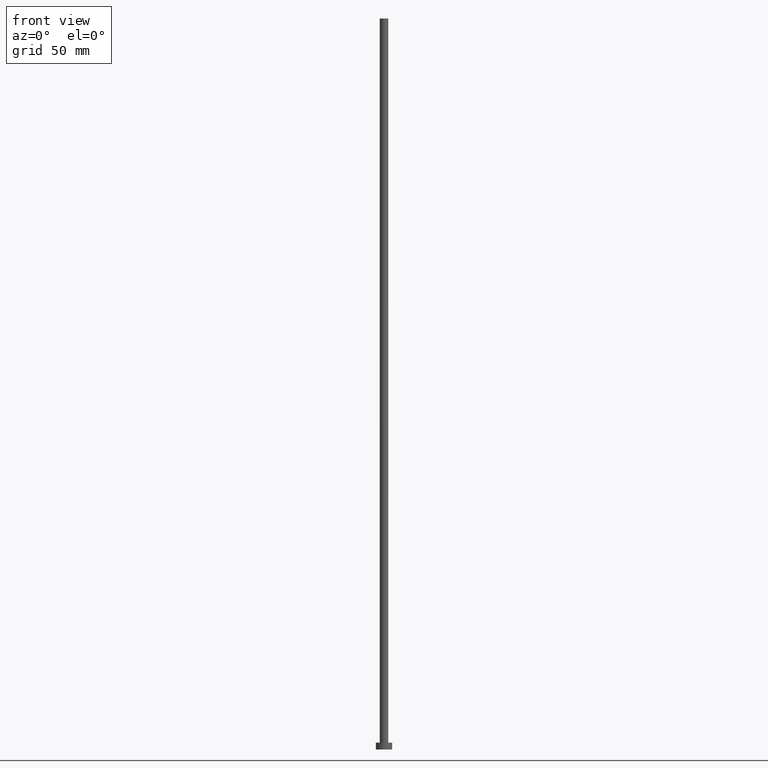
[diagram: clean part render]
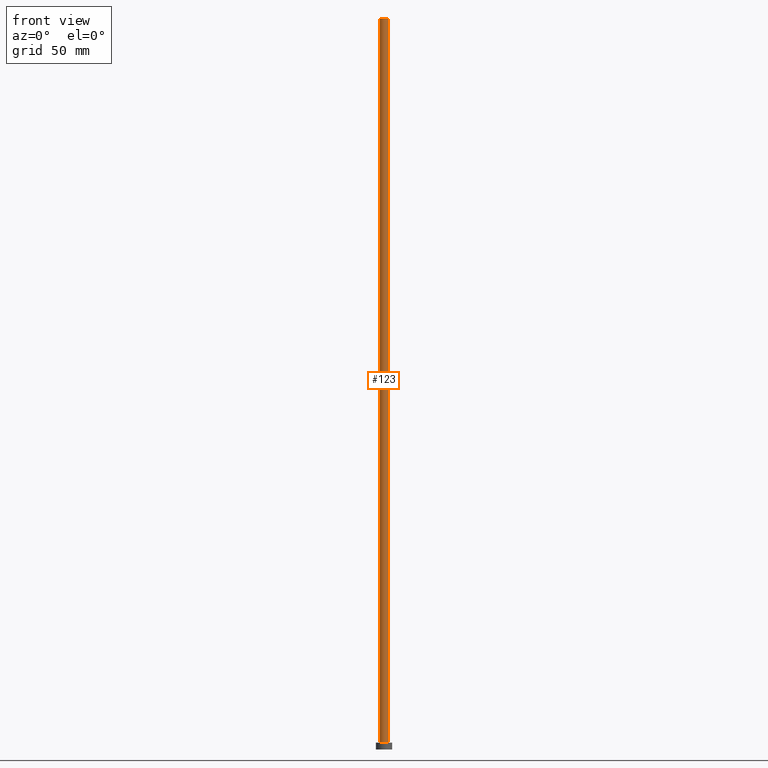
[diagram: same view with one face highlighted and labeled with its STEP entity id]
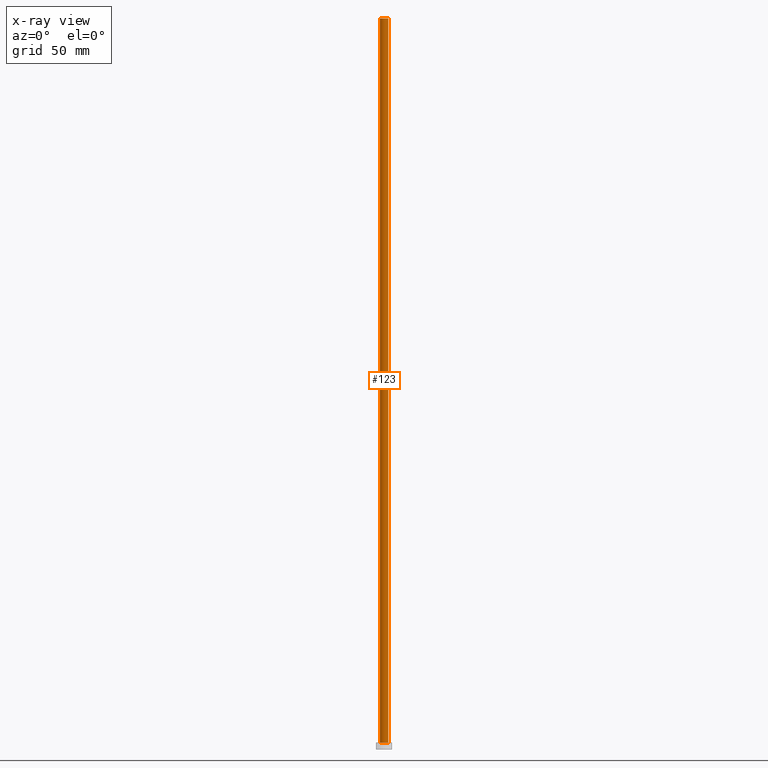
[diagram: x-ray of the same camera — body ghosted, the highlighted face saturated]
A machine part, front view. The second image highlights one B-rep face of the part: STEP entity #123.
The next image is the same camera in x-ray: the body ghosted, the highlighted face saturated — about 0% of this face is hidden behind the body in this view.
In plain terms, the highlighted cylindrical surface (edge-blend (fillet) strip) has radius 1.85 mm, axis along (-0, -0, -1).
Its self-contained STEP definition (entity closure, byte-faithful):
#1 = EDGE_CURVE ( 'NONE', #177, #40, #57, .T. ) ;
#10 = LINE ( 'NONE', #33, #174 ) ;
#23 = EDGE_LOOP ( 'NONE', ( #162, #77, #119, #38 ) ) ;
#33 = CARTESIAN_POINT ( 'NONE',  ( 1.850000000000000089, 2.265596578422603100E-16, 315.0000000000000000 ) ) ;
#38 = ORIENTED_EDGE ( 'NONE', *, *, #243, .T. ) ;
#40 = VERTEX_POINT ( 'NONE', #144 ) ;
#47 = CARTESIAN_POINT ( 'NONE',  ( 1.850000000000000089, 2.265596578422603100E-16, 3.000000000000000000 ) ) ;
#56 = CARTESIAN_POINT ( 'NONE',  ( -1.850000000000000089, 0.000000000000000000, 315.0000000000000000 ) ) ;
#57 = CIRCLE ( 'NONE', #115, 1.850000000000000089 ) ;
#61 = VERTEX_POINT ( 'NONE', #47 ) ;
#63 = VERTEX_POINT ( 'NONE', #73 ) ;
#73 = CARTESIAN_POINT ( 'NONE',  ( -1.850000000000000089, 0.000000000000000000, 3.000000000000000000 ) ) ;
#74 = CIRCLE ( 'NONE', #251, 1.850000000000000089 ) ;
#77 = ORIENTED_EDGE ( 'NONE', *, *, #1, .F. ) ;
#81 = DIRECTION ( 'NONE',  ( 1.000000000000000000, 0.000000000000000000, 0.000000000000000000 ) ) ;
#92 = DIRECTION ( 'NONE',  ( -0.000000000000000000, -0.000000000000000000, -1.000000000000000000 ) ) ;
#101 = CARTESIAN_POINT ( 'NONE',  ( 0.000000000000000000, 0.000000000000000000, 315.0000000000000000 ) ) ;
#105 = DIRECTION ( 'NONE',  ( 0.000000000000000000, 0.000000000000000000, 1.000000000000000000 ) ) ;
#107 = DIRECTION ( 'NONE',  ( 0.000000000000000000, 0.000000000000000000, 1.000000000000000000 ) ) ;
#108 = DIRECTION ( 'NONE',  ( -0.000000000000000000, -0.000000000000000000, -1.000000000000000000 ) ) ;
#110 = DIRECTION ( 'NONE',  ( -0.000000000000000000, -0.000000000000000000, -1.000000000000000000 ) ) ;
#113 = AXIS2_PLACEMENT_3D ( 'NONE', #133, #92, #190 ) ;
#114 = EDGE_CURVE ( 'NONE', #177, #63, #235, .T. ) ;
#115 = AXIS2_PLACEMENT_3D ( 'NONE', #101, #105, #81 ) ;
#119 = ORIENTED_EDGE ( 'NONE', *, *, #114, .T. ) ;
#123 = ADVANCED_FACE ( 'NONE', ( #164 ), #132, .T. ) ;
#126 = EDGE_CURVE ( 'NONE', #40, #61, #10, .T. ) ;
#128 = DIRECTION ( 'NONE',  ( 1.000000000000000000, 0.000000000000000000, 0.000000000000000000 ) ) ;
#132 = CYLINDRICAL_SURFACE ( 'NONE', #113, 1.850000000000000089 ) ;
#133 = CARTESIAN_POINT ( 'NONE',  ( 0.000000000000000000, 0.000000000000000000, 315.0000000000000000 ) ) ;
#144 = CARTESIAN_POINT ( 'NONE',  ( 1.850000000000000089, 2.265596578422603100E-16, 315.0000000000000000 ) ) ;
#162 = ORIENTED_EDGE ( 'NONE', *, *, #126, .F. ) ;
#164 = FACE_OUTER_BOUND ( 'NONE', #23, .T. ) ;
#174 = VECTOR ( 'NONE', #108, 1000.000000000000000 ) ;
#177 = VERTEX_POINT ( 'NONE', #250 ) ;
#187 = VECTOR ( 'NONE', #110, 1000.000000000000000 ) ;
#190 = DIRECTION ( 'NONE',  ( -1.000000000000000000, 0.000000000000000000, 0.000000000000000000 ) ) ;
#199 = CARTESIAN_POINT ( 'NONE',  ( 0.000000000000000000, 0.000000000000000000, 3.000000000000000000 ) ) ;
#235 = LINE ( 'NONE', #56, #187 ) ;
#243 = EDGE_CURVE ( 'NONE', #63, #61, #74, .T. ) ;
#250 = CARTESIAN_POINT ( 'NONE',  ( -1.850000000000000089, 0.000000000000000000, 315.0000000000000000 ) ) ;
#251 = AXIS2_PLACEMENT_3D ( 'NONE', #199, #107, #128 ) ;